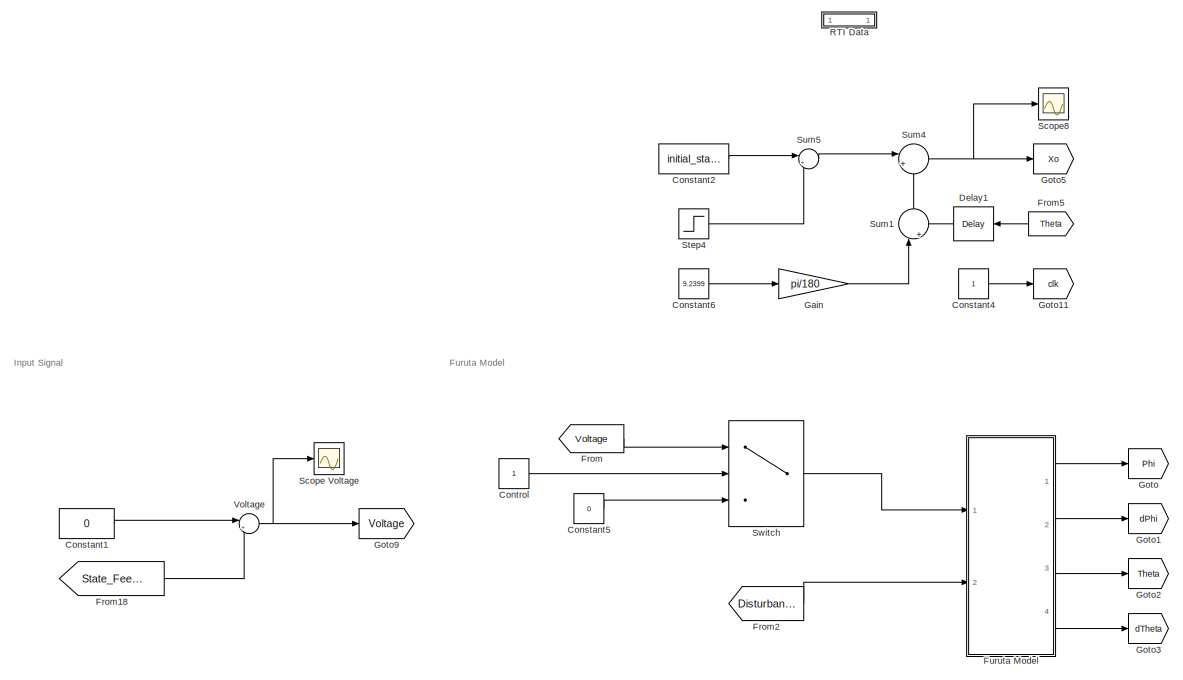
[diagram: root canvas - part 1/3, top left region]
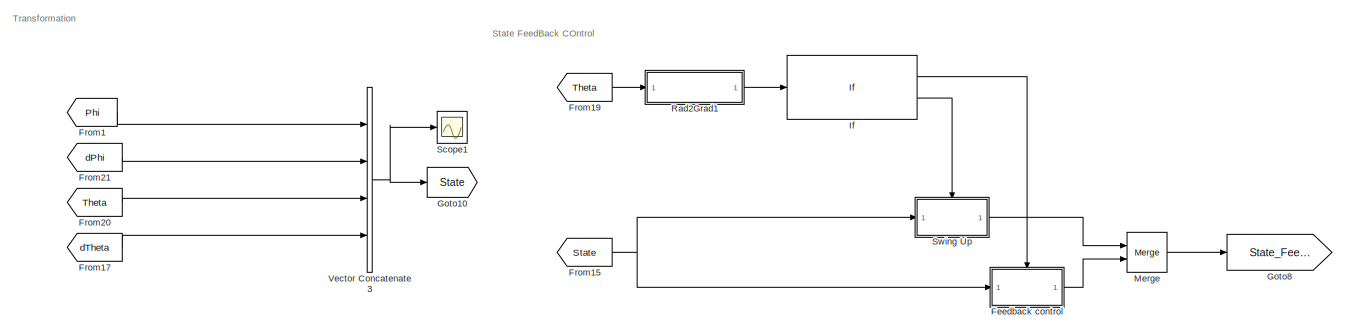
[diagram: root canvas - part 2/3, middle right region]
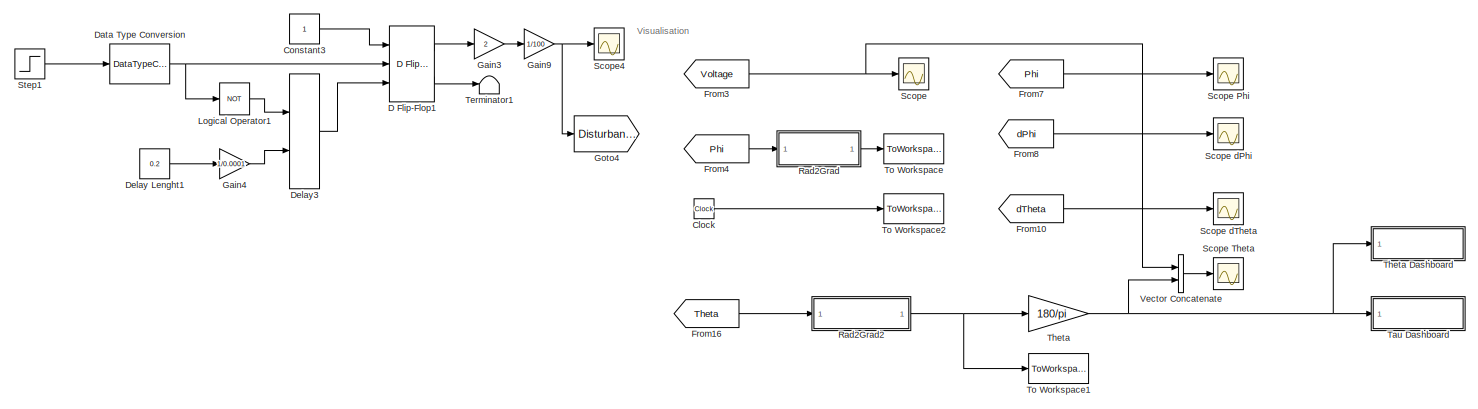
[diagram: root canvas - part 3/3, bottom center region]
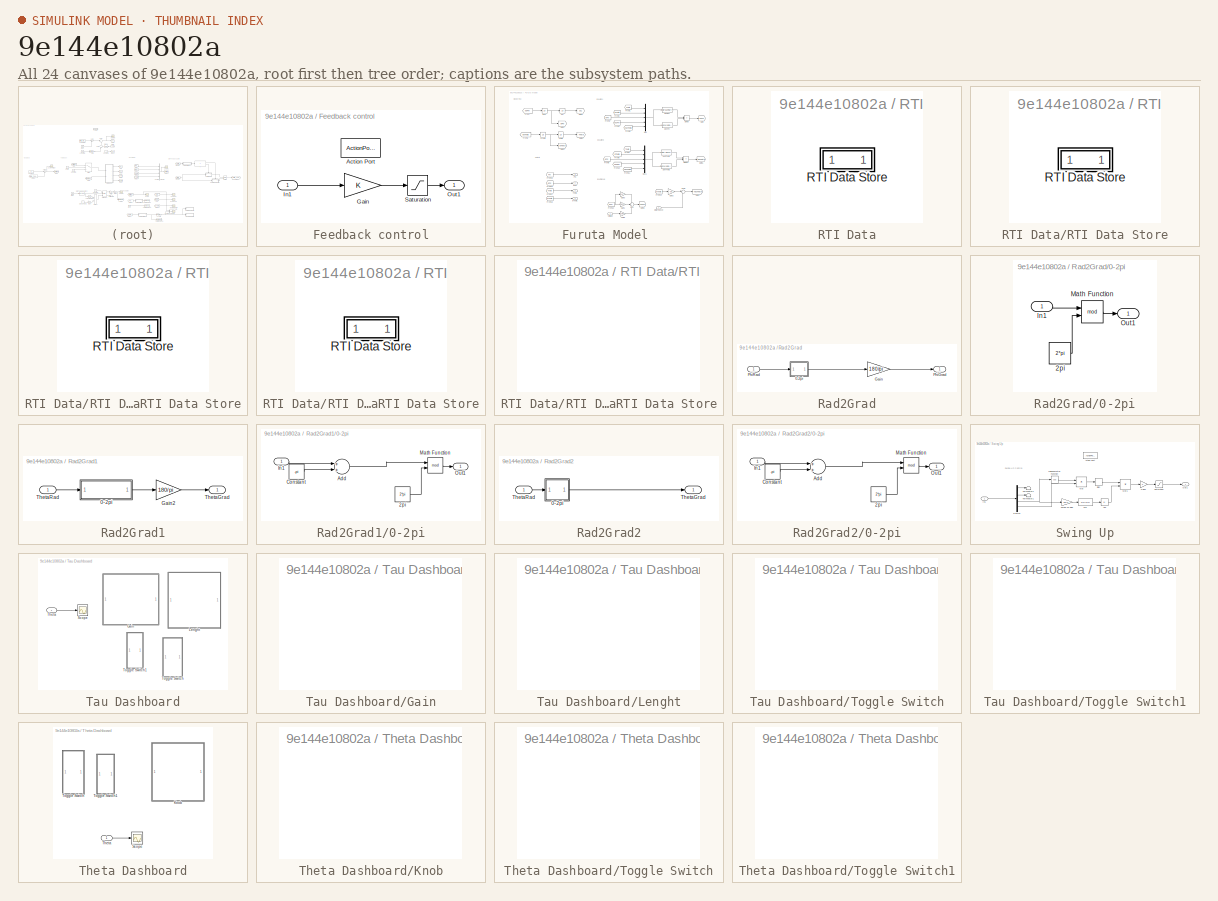
[diagram: thumbnail index - all 24 canvases of the model, root first then tree order]
MODEL slx_9e144e10802a
KIND model
CONFIG AbsTol = auto
CONFIG FixedStep = 0.0001
CONFIG MaxStep = auto
CONFIG MinStep = auto
CONFIG PostLoadFcn = , if any(exist('dsrtsu_mdlpostloadfcn', 'file') == [2, 3, 6]), try dsrtsu_mdlpostloadfcn('Execute', bdroot); catch fprintf('Error in PostLoadFcn (dsrtsu_mdlpostloadfcn) for model "%s":\n %s\n', bdroot, lasterr); end, end, \n
CONFIG RelTol = 1e-3
CONFIG SampleTimeConstraint = Unconstrained
CONFIG Solver = ode3
CONFIG SolverMode = SingleTasking
CONFIG SolverName = ode3
CONFIG StartTime = 0.0
CONFIG StopTime = 10
BLOCK [Clock] Clock
BLOCK [Constant] Constant1
  Value = 0
BLOCK [Constant] Constant2
  Commented = on
  Value = initial_state
BLOCK [Constant] Constant3
  OutDataTypeStr = boolean
BLOCK [Constant] Constant4
  Commented = on
BLOCK [Constant] Constant5
  Value = 0
BLOCK [Constant] Constant6
  Commented = on
  Value = 9.2399
BLOCK [Constant] Control
BLOCK [Reference] D Flip-Flop1  REF=simulink_extras/Flip Flops/D Flip-Flop
  Ports = [3, 2]
  SourceBlock = simulink_extras/Flip Flops/D Flip-Flop
  SourceType = DFlipFlop
BLOCK [DataTypeConversion] Data Type Conversion
  OutDataTypeStr = boolean
  RndMeth = Floor
  SaturateOnIntegerOverflow = off
BLOCK [Constant] Delay Lenght1
  OutDataTypeStr = double
  Value = 0.2
BLOCK [Delay] Delay1
  Commented = on
  DelayLength = 1
  InputPortMap = u0
  Ports = [1, 1]
BLOCK [Delay] Delay3
  DelayLengthSource = Input port
  DelayLengthUpperLimit = 100000
  InitialCondition = 1
  InputPortMap = u0,p1
  Ports = [2, 1]
BLOCK [SubSystem] Feedback control
  Ports = [1, 1, 0, 0, 0, 0, 0, 1]
  RequestExecContextInheritance = off
  TreatAsAtomicUnit = on
BLOCK [ActionPort] Feedback control/Action Port
  ActionType = then
BLOCK [Gain] Feedback control/Gain
  Gain = K
  Multiplication = Matrix(K*u)
  OutDataTypeStr = double
  ParamDataTypeStr = double
  SaturateOnIntegerOverflow = off
BLOCK [Inport] Feedback control/In1
  IconDisplay = Port number
BLOCK [Outport] Feedback control/Out1
  IconDisplay = Port number
BLOCK [Saturate] Feedback control/Saturation
  InputPortMap = u0
  LowerLimit = -12
  Ports = [1, 1]
  UpperLimit = 12
BLOCK [From] From
  GotoTag = Voltage
BLOCK [From] From1
  GotoTag = Phi
BLOCK [From] From10
  GotoTag = dTheta
BLOCK [From] From15
  GotoTag = State
BLOCK [From] From16
  GotoTag = Theta
BLOCK [From] From17
  GotoTag = dTheta
BLOCK [From] From18
  GotoTag = State_FeedBack
BLOCK [From] From19
  GotoTag = Theta
BLOCK [From] From2
  GotoTag = Disturbance
BLOCK [From] From20
  GotoTag = Theta
BLOCK [From] From21
  GotoTag = dPhi
BLOCK [From] From3
  GotoTag = Voltage
BLOCK [From] From4
  GotoTag = Phi
BLOCK [From] From5
  Commented = on
  GotoTag = Theta
BLOCK [From] From7
  GotoTag = Phi
BLOCK [From] From8
  GotoTag = dPhi
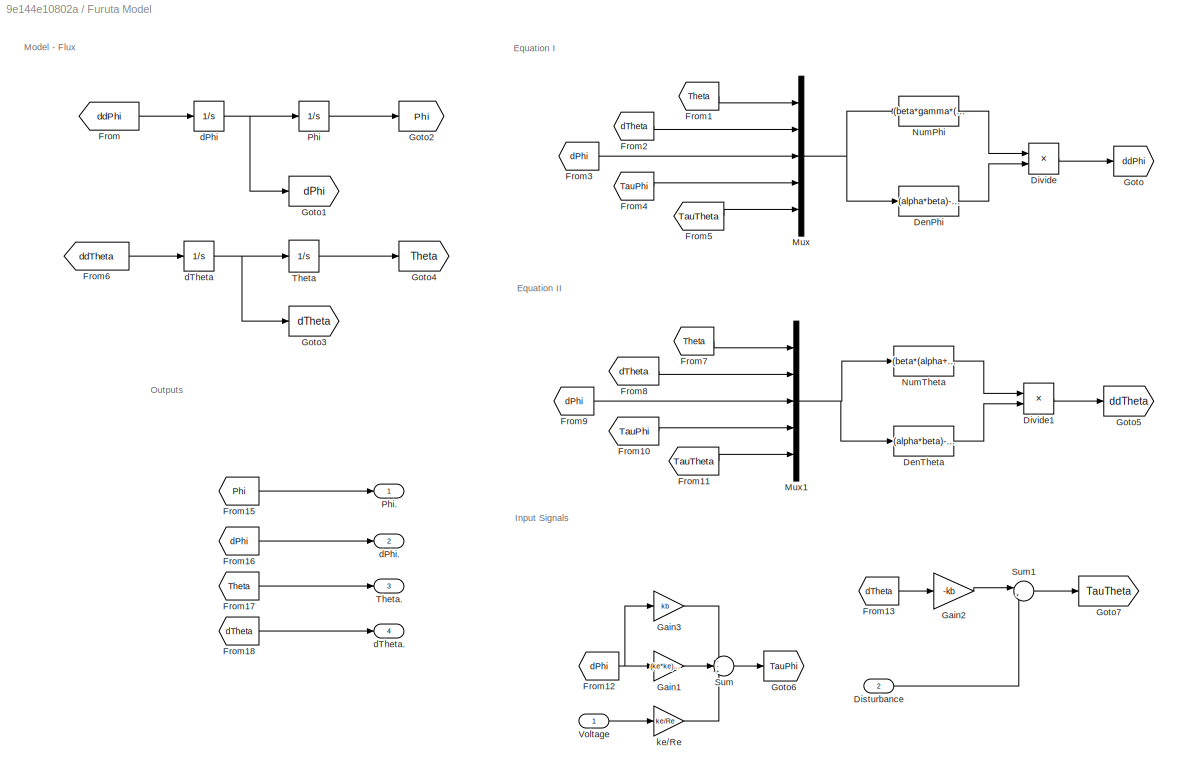
BLOCK [SubSystem] Furuta Model 
  Ports = [2, 4]
  RequestExecContextInheritance = off
BLOCK [Fcn] Furuta Model /DenPhi
  Expr = (alpha*beta)-(gamma*gamma)+((beta*beta+gamma*gamma)*sin(u(1))*sin(u(1)))
BLOCK [Fcn] Furuta Model /DenTheta
  Expr = (alpha*beta)-(gamma*gamma)+((beta*beta+gamma*gamma)*sin(u(1))*sin(u(1)))
BLOCK [Inport] Furuta Model /Disturbance
  IconDisplay = Port number
  Port = 2
BLOCK [Product] Furuta Model /Divide
  InputSameDT = off
  Inputs = */
  OutDataTypeStr = Inherit: Inherit via internal rule
  Ports = [2, 1]
  RndMeth = Floor
  SaturateOnIntegerOverflow = off
BLOCK [Product] Furuta Model /Divide1
  InputSameDT = off
  Inputs = */
  OutDataTypeStr = Inherit: Inherit via internal rule
  Ports = [2, 1]
  RndMeth = Floor
  SaturateOnIntegerOverflow = off
BLOCK [From] Furuta Model /From
  GotoTag = ddPhi
BLOCK [From] Furuta Model /From1
  GotoTag = Theta
BLOCK [From] Furuta Model /From10
  GotoTag = TauPhi
BLOCK [From] Furuta Model /From11
  GotoTag = TauTheta
BLOCK [From] Furuta Model /From12
  GotoTag = dPhi
BLOCK [From] Furuta Model /From13
  GotoTag = dTheta
BLOCK [From] Furuta Model /From15
  GotoTag = Phi
BLOCK [From] Furuta Model /From16
  GotoTag = dPhi
BLOCK [From] Furuta Model /From17
  GotoTag = Theta
BLOCK [From] Furuta Model /From18
  GotoTag = dTheta
BLOCK [From] Furuta Model /From2
  GotoTag = dTheta
BLOCK [From] Furuta Model /From3
  GotoTag = dPhi
BLOCK [From] Furuta Model /From4
  GotoTag = TauPhi
BLOCK [From] Furuta Model /From5
  GotoTag = TauTheta
BLOCK [From] Furuta Model /From6
  GotoTag = ddTheta
BLOCK [From] Furuta Model /From7
  GotoTag = Theta
BLOCK [From] Furuta Model /From8
  GotoTag = dTheta
BLOCK [From] Furuta Model /From9
  GotoTag = dPhi
BLOCK [Gain] Furuta Model /Gain1
  Gain = (ke*ke)/Re
  OutDataTypeStr = Inherit: Inherit via internal rule
  ParamDataTypeStr = Inherit: Inherit via internal rule
  SaturateOnIntegerOverflow = off
BLOCK [Gain] Furuta Model /Gain2
  Gain = -kb
  OutDataTypeStr = Inherit: Inherit via internal rule
  ParamDataTypeStr = Inherit: Inherit via internal rule
  SaturateOnIntegerOverflow = off
BLOCK [Gain] Furuta Model /Gain3
  Gain = kb
  OutDataTypeStr = Inherit: Inherit via internal rule
  ParamDataTypeStr = Inherit: Inherit via internal rule
  SaturateOnIntegerOverflow = off
BLOCK [Goto] Furuta Model /Goto
  GotoTag = ddPhi
BLOCK [Goto] Furuta Model /Goto1
  GotoTag = dPhi
BLOCK [Goto] Furuta Model /Goto2
  GotoTag = Phi
BLOCK [Goto] Furuta Model /Goto3
  GotoTag = dTheta
BLOCK [Goto] Furuta Model /Goto4
  GotoTag = Theta
BLOCK [Goto] Furuta Model /Goto5
  GotoTag = ddTheta
BLOCK [Goto] Furuta Model /Goto6
  GotoTag = TauPhi
BLOCK [Goto] Furuta Model /Goto7
  GotoTag = TauTheta
BLOCK [Mux] Furuta Model /Mux
  DisplayOption = bar
  Inputs = 5
  Ports = [5, 1]
BLOCK [Mux] Furuta Model /Mux1
  DisplayOption = bar
  Inputs = 5
  Ports = [5, 1]
BLOCK [Fcn] Furuta Model /NumPhi
  Expr = (beta*gamma*(sin(u(1))*sin(u(1))-1)*sin(u(1))*u(3)*u(3))-(2*beta*beta*cos(u(1))*sin(u(1))*u(3)*u(2))+(beta*gamma*sin(u(1))*u(2)*u(2))-(gamma*sigma*cos(u(1))*sin(u(1)))+(beta*u(4))-(gamma*cos(u(1))*u(5))
BLOCK [Fcn] Furuta Model /NumTheta
  Expr = (beta*(alpha+beta*sin(u(1))*sin(u(1)))*cos(u(1))*sin(u(1))*u(3)*u(3))+(2*beta*gamma*(1-sin(u(1))*sin(u(1)))*sin(u(1))*u(3)*u(2))-(gamma*gamma*cos(u(1))*sin(u(1))*u(2)*u(2))+(sigma*(alpha+beta*sin(u(1))*sin(u(1)))*sin(u(1)))-(gamma*cos(u(1))*u(4))+((alpha+beta*sin(u(1))*sin(u(1)))*u(5))
BLOCK [Integrator] Furuta Model /Phi
  Ports = [1, 1]
BLOCK [Outport] Furuta Model /Phi.
  IconDisplay = Port number
BLOCK [Sum] Furuta Model /Sum
  IconShape = round
  InputSameDT = off
  Inputs = --+
  OutDataTypeStr = Inherit: Inherit via internal rule
  Ports = [3, 1]
  SaturateOnIntegerOverflow = off
BLOCK [Sum] Furuta Model /Sum1
  IconShape = round
  InputSameDT = off
  Inputs = |++
  OutDataTypeStr = Inherit: Inherit via internal rule
  Ports = [2, 1]
  SaturateOnIntegerOverflow = off
BLOCK [Integrator] Furuta Model /Theta
  InitialCondition = initial_state
  Ports = [1, 1]
BLOCK [Outport] Furuta Model /Theta.
  IconDisplay = Port number
  Port = 3
BLOCK [Inport] Furuta Model /Voltage 
  IconDisplay = Port number
BLOCK [Integrator] Furuta Model /dPhi
  Ports = [1, 1]
BLOCK [Outport] Furuta Model /dPhi.
  IconDisplay = Port number
  Port = 2
BLOCK [Integrator] Furuta Model /dTheta
  Ports = [1, 1]
BLOCK [Outport] Furuta Model /dTheta.
  IconDisplay = Port number
  Port = 4
BLOCK [Gain] Furuta Model /ke//Re 
  Gain = ke/Re
  OutDataTypeStr = Inherit: Inherit via internal rule
  ParamDataTypeStr = Inherit: Inherit via internal rule
  SaturateOnIntegerOverflow = off
BLOCK [Gain] Gain
  Commented = on
  Gain = pi/180
  OutDataTypeStr = Inherit: Inherit via internal rule
  ParamDataTypeStr = Inherit: Inherit via internal rule
  SaturateOnIntegerOverflow = off
BLOCK [Gain] Gain3
  Gain = 2
  OutDataTypeStr = Inherit: Inherit via internal rule
  ParamDataTypeStr = double
  SaturateOnIntegerOverflow = off
BLOCK [Gain] Gain4
  Gain = 1/0.0001
  OutDataTypeStr = Inherit: Inherit via internal rule
  ParamDataTypeStr = Inherit: Inherit via internal rule
  SaturateOnIntegerOverflow = off
BLOCK [Gain] Gain9
  Gain = 1/100
  OutDataTypeStr = Inherit: Inherit via internal rule
  ParamDataTypeStr = Inherit: Inherit via internal rule
  SaturateOnIntegerOverflow = off
BLOCK [Goto] Goto
  GotoTag = Phi
BLOCK [Goto] Goto1
  GotoTag = dPhi
BLOCK [Goto] Goto10
  GotoTag = State
BLOCK [Goto] Goto11
  Commented = on
  GotoTag = clk
BLOCK [Goto] Goto2
  GotoTag = Theta
BLOCK [Goto] Goto3
  GotoTag = dTheta
BLOCK [Goto] Goto4
  GotoTag = Disturbance
BLOCK [Goto] Goto5
  Commented = on
  GotoTag = Xo
BLOCK [Goto] Goto8
  GotoTag = State_FeedBack
BLOCK [Goto] Goto9
  GotoTag = Voltage
BLOCK [If] If
  IfExpression = (u1 < 210) & (u1 > 150)
  Ports = [1, 2]
BLOCK [Logic] Logical Operator1
  AllPortsSameDT = off
  Operator = NOT
  OutDataTypeStr = boolean
  Ports = [1, 1]
BLOCK [Merge] Merge
  Ports = [2, 1]
BLOCK [SubSystem] RTI Data
  CopyFcn = if exist('rtidc'), try,  rtidc('DataHostBlockClbCopy', gcbh); catch, disp(['Warning: ''CopyFcn'' for RTI Data block failed: ' lasterr]); end, end,
  DeleteFcn = if exist('rtidc'), try,  rtidc('DataHostBlockClbDelete', gcbh); catch, disp(['Warning: ''DeleteFcn'' for RTI Data block failed: ' lasterr]); end, end,
  LoadFcn = if exist('rtidc'), try,  rtidc('DataHostBlockClbLoad', gcbh); catch, disp(['Warning: ''LoadFcn'' for RTI Data block failed: ' lasterr]); end, end,
  ModelCloseFcn = if exist('rtidc'), try,  rtidc('DataHostBlockClbModelClose', gcbh); catch, disp(['Warning: ''ModelCloseFcn'' for RTI Data block failed: ' lasterr]); end, end,
  NameChangeFcn = if exist('rtidc'), try,  rtidc('DataHostBlockClbNameChange', gcbh); catch, disp(['Warning: ''NameChangeFcn'' for RTI Data block failed: ' lasterr]); end, end,
  Ports = []
  PostSaveFcn = if exist('rtidc'), try,  rtidc('DataHostBlockClbPostSave', gcbh); catch, disp(['Warning: ''PostSaveFcn'' for RTI Data block failed: ' lasterr]); end, end,
  PreSaveFcn = if exist('rtidc'), try,  rtidc('DataHostBlockClbPreSave', gcbh); catch, disp(['Warning: ''PreSaveFcn'' for RTI Data block failed: ' lasterr]); end, end,
  RequestExecContextInheritance = off
  Tag = struct('RTIDataServer',struct('RTIDataServerVs','2','RTIModelDescription','struct(''main'',''Furuta_Control_2015a'',''sub'','''',''isMp'',0)'))
BLOCK [SubSystem] RTI Data/RTI Data Store
  Ports = []
  RequestExecContextInheritance = off
  Tag = struct('private',struct('version',struct('dsVer',uint32(2),'dsVerCreation',uint32(2),'RTI',struct('ver','7.3','type','RTI1006')),'access',struct('type','Model','isPerm',1,'created',['02-Oct-2018 16:40:55'],'modified',['06-Nov-2018 22:49:19'],'location','')),'public',struct('main',struct('data',[]),'sub',struct('name',{{'Furuta_Control_2015a'}},'data',{{struct('TH',struct('thTaskInfo',struct('taskT...<+901ch>
BLOCK [SubSystem] RTI Data/RTI Data Store/RTI Data Store
  Ports = []
  RequestExecContextInheritance = off
BLOCK [SubSystem] RTI Data/RTI Data Store/RTI Data Store/RTI Data Store
  Ports = []
  RequestExecContextInheritance = off
BLOCK [SubSystem] RTI Data/RTI Data Store/RTI Data Store/RTI Data Store/RTI Data Store
  Ports = []
  RequestExecContextInheritance = off
BLOCK [SubSystem] Rad2Grad
  Ports = [1, 1]
  RequestExecContextInheritance = off
BLOCK [SubSystem] Rad2Grad/0-2pi
  Ports = [1, 1]
  RequestExecContextInheritance = off
BLOCK [Constant] Rad2Grad/0-2pi/2pi
  Value = 2*pi
BLOCK [Inport] Rad2Grad/0-2pi/In1
  IconDisplay = Port number
BLOCK [Math] Rad2Grad/0-2pi/Math Function
  Operator = mod
  Ports = [2, 1]
BLOCK [Outport] Rad2Grad/0-2pi/Out1
  IconDisplay = Port number
BLOCK [Gain] Rad2Grad/Gain
  Commented = through
  Gain = 180/pi
  OutDataTypeStr = Inherit: Inherit via internal rule
  ParamDataTypeStr = Inherit: Inherit via internal rule
  SaturateOnIntegerOverflow = off
BLOCK [Outport] Rad2Grad/PhiGrad
  IconDisplay = Port number
BLOCK [Inport] Rad2Grad/PhiRad
  IconDisplay = Port number
BLOCK [SubSystem] Rad2Grad1
  Ports = [1, 1]
  RequestExecContextInheritance = off
BLOCK [SubSystem] Rad2Grad1/0-2pi
  Ports = [1, 1]
  RequestExecContextInheritance = off
BLOCK [Constant] Rad2Grad1/0-2pi/2pi
  Value = 2*pi
BLOCK [Sum] Rad2Grad1/0-2pi/Add
  InputSameDT = off
  OutDataTypeStr = Inherit: Inherit via internal rule
  Ports = [2, 1]
  SaturateOnIntegerOverflow = off
BLOCK [Constant] Rad2Grad1/0-2pi/Constant
  Value = -pi
BLOCK [Inport] Rad2Grad1/0-2pi/In1
  IconDisplay = Port number
BLOCK [Math] Rad2Grad1/0-2pi/Math Function
  Operator = mod
  Ports = [2, 1]
BLOCK [Outport] Rad2Grad1/0-2pi/Out1
  IconDisplay = Port number
BLOCK [Gain] Rad2Grad1/Gain2
  Gain = 180/pi
  OutDataTypeStr = Inherit: Inherit via internal rule
  ParamDataTypeStr = Inherit: Inherit via internal rule
  SaturateOnIntegerOverflow = off
BLOCK [Outport] Rad2Grad1/ThetaGrad
  IconDisplay = Port number
BLOCK [Inport] Rad2Grad1/ThetaRad
  IconDisplay = Port number
BLOCK [SubSystem] Rad2Grad2
  Ports = [1, 1]
  RequestExecContextInheritance = off
BLOCK [SubSystem] Rad2Grad2/0-2pi
  Ports = [1, 1]
  RequestExecContextInheritance = off
BLOCK [Constant] Rad2Grad2/0-2pi/2pi
  Value = 2*pi
BLOCK [Sum] Rad2Grad2/0-2pi/Add
  InputSameDT = off
  OutDataTypeStr = Inherit: Inherit via internal rule
  Ports = [2, 1]
  SaturateOnIntegerOverflow = off
BLOCK [Constant] Rad2Grad2/0-2pi/Constant
  Value = -pi
BLOCK [Inport] Rad2Grad2/0-2pi/In1
  IconDisplay = Port number
BLOCK [Math] Rad2Grad2/0-2pi/Math Function
  Operator = mod
  Ports = [2, 1]
BLOCK [Outport] Rad2Grad2/0-2pi/Out1
  IconDisplay = Port number
BLOCK [Outport] Rad2Grad2/ThetaGrad
  IconDisplay = Port number
BLOCK [Inport] Rad2Grad2/ThetaRad
  IconDisplay = Port number
BLOCK [Scope] Scope
  DataFormat = StructureWithTime
  Floating = off
  LimitDataPoints = off
  NumInputPorts = 1
  Ports = [1]
  YMax = 6.87804
  YMin = -6.87803
BLOCK [Scope] Scope Phi
  DataFormat = StructureWithTime
  Floating = off
  LimitDataPoints = off
  NumInputPorts = 1
  Ports = [1]
  SaveName = ScopeData4
  YMax = 1.39934
  YMin = -2.67842
  ZoomMode = xonly
BLOCK [Scope] Scope Theta
  DataFormat = StructureWithTime
  Floating = off
  LimitDataPoints = off
  NumInputPorts = 1
  Ports = [1]
  SaveName = ScopeData6
  TimeRange = 10
  YMax = 375
  YMin = -25
BLOCK [Scope] Scope Voltage
  DataFormat = StructureWithTime
  Floating = off
  LimitDataPoints = off
  NumInputPorts = 1
  Ports = [1]
  SaveName = ScopeData1
  YMax = 12.5
  YMin = -12.5
BLOCK [Scope] Scope dPhi
  DataFormat = StructureWithTime
  Floating = off
  LimitDataPoints = off
  NumInputPorts = 1
  Ports = [1]
  SaveName = ScopeData5
  YMax = 9.91965
  YMin = -12.39064
BLOCK [Scope] Scope dTheta
  DataFormat = StructureWithTime
  Floating = off
  LimitDataPoints = off
  NumInputPorts = 1
  Ports = [1]
  SaveName = ScopeData7
  YMax = 17.40154
  YMin = -20.04064
BLOCK [Scope] Scope1
  Floating = off
  LimitDataPoints = off
  NumInputPorts = 1
  Ports = [1]
  SaveName = ScopeData9
  YMax = 15
  YMin = -17.5
BLOCK [Scope] Scope4
  DataFormat = StructureWithTime
  Floating = off
  LimitDataPoints = off
  NumInputPorts = 1
  Ports = [1]
  SaveName = ScopeData10
  YMax = 0.0325
  YMin = 0
BLOCK [Scope] Scope8
  Commented = on
  Floating = off
  NumInputPorts = 1
  Ports = [1]
  SaveName = ScopeData8
BLOCK [Step] Step1
  SampleTime = 0
  Time = 7
BLOCK [Step] Step4
  After = initial_state
  Commented = on
  SampleTime = 0
  Time = 0.5
BLOCK [Sum] Sum1
  Commented = on
  IconShape = round
  InputSameDT = off
  Inputs = |++
  OutDataTypeStr = Inherit: Inherit via internal rule
  Ports = [2, 1]
  SaturateOnIntegerOverflow = off
BLOCK [Sum] Sum4
  Commented = on
  IconShape = round
  InputSameDT = off
  Inputs = |++
  OutDataTypeStr = Inherit: Inherit via internal rule
  Ports = [2, 1]
  SaturateOnIntegerOverflow = off
BLOCK [Sum] Sum5
  Commented = on
  IconShape = round
  InputSameDT = off
  Inputs = |+-
  OutDataTypeStr = Inherit: Inherit via internal rule
  Ports = [2, 1]
  SaturateOnIntegerOverflow = off
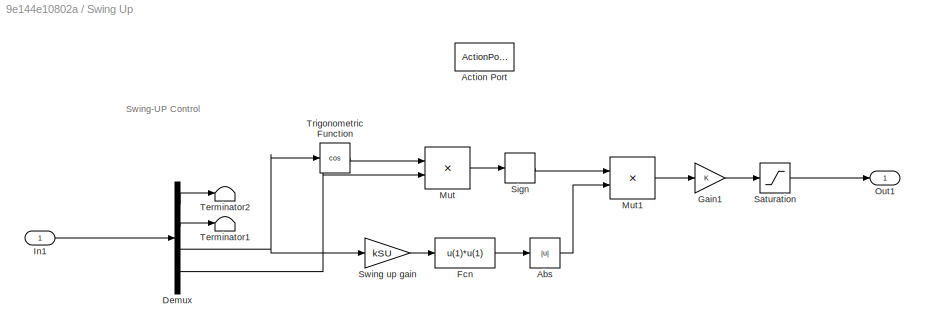
BLOCK [SubSystem] Swing Up
  Ports = [1, 1, 0, 0, 0, 0, 0, 1]
  RequestExecContextInheritance = off
  TreatAsAtomicUnit = on
BLOCK [Abs] Swing Up/Abs
  SaturateOnIntegerOverflow = off
BLOCK [ActionPort] Swing Up/Action Port
  ActionType = else
BLOCK [Demux] Swing Up/Demux
  DisplayOption = bar
  Ports = [1, 4]
BLOCK [Fcn] Swing Up/Fcn
  Expr = u(1)*u(1)
BLOCK [Gain] Swing Up/Gain1
  OutDataTypeStr = Inherit: Inherit via internal rule
  ParamDataTypeStr = Inherit: Inherit via internal rule
  SaturateOnIntegerOverflow = off
BLOCK [Inport] Swing Up/In1
  IconDisplay = Port number
BLOCK [Product] Swing Up/Mut
  InputSameDT = off
  Inputs = **
  OutDataTypeStr = Inherit: Inherit via internal rule
  Ports = [2, 1]
  RndMeth = Floor
  SaturateOnIntegerOverflow = off
BLOCK [Product] Swing Up/Mut1
  InputSameDT = off
  Inputs = **
  OutDataTypeStr = Inherit: Inherit via internal rule
  Ports = [2, 1]
  RndMeth = Floor
  SaturateOnIntegerOverflow = off
BLOCK [Outport] Swing Up/Out1
  IconDisplay = Port number
  InitialOutput = 0
BLOCK [Saturate] Swing Up/Saturation
  InputPortMap = u0
  LowerLimit = -12
  Ports = [1, 1]
  UpperLimit = 12
BLOCK [Signum] Swing Up/Sign
BLOCK [Gain] Swing Up/Swing up gain
  Gain = kSU
  OutDataTypeStr = Inherit: Inherit via internal rule
  ParamDataTypeStr = Inherit: Inherit via internal rule
  SaturateOnIntegerOverflow = off
BLOCK [Terminator] Swing Up/Terminator1
BLOCK [Terminator] Swing Up/Terminator2
BLOCK [Trigonometry] Swing Up/Trigonometric Function
  Operator = cos
  Ports = [1, 1]
BLOCK [Switch] Switch
  Criteria = u2 > Threshold
  InputSameDT = off
  SaturateOnIntegerOverflow = off
  Threshold = 0.5
BLOCK [SubSystem] Tau Dashboard
  Ports = [1]
  RequestExecContextInheritance = off
BLOCK [SubSystem] Tau Dashboard/Gain
  DialogController = hmiCreateDDGDialog
  IsWebBlock = on
  MaskHideContents = on
  Ports = []
  RequestExecContextInheritance = off
BLOCK [SubSystem] Tau Dashboard/Lenght
  DialogController = hmiCreateDDGDialog
  IsWebBlock = on
  MaskHideContents = on
  Ports = []
  RequestExecContextInheritance = off
BLOCK [Scope] Tau Dashboard/Scope
  DataFormat = StructureWithTime
  Floating = off
  LimitDataPoints = off
  NumInputPorts = 1
  Ports = [1]
  SaveName = ScopeData2
  TimeRange = 10
  YMax = 375
  YMin = 0
BLOCK [Inport] Tau Dashboard/Theta 
  IconDisplay = Port number
BLOCK [SubSystem] Tau Dashboard/Toggle Switch
  DialogController = hmiCreateDDGDialog
  IsWebBlock = on
  MaskHideContents = on
  Ports = []
  RequestExecContextInheritance = off
BLOCK [SubSystem] Tau Dashboard/Toggle Switch1
  DialogController = hmiCreateDDGDialog
  IsWebBlock = on
  MaskHideContents = on
  Ports = []
  RequestExecContextInheritance = off
BLOCK [Terminator] Terminator1
BLOCK [Gain] Theta
  Gain = 180/pi
  OutDataTypeStr = Inherit: Inherit via internal rule
  ParamDataTypeStr = Inherit: Inherit via internal rule
  SaturateOnIntegerOverflow = off
BLOCK [SubSystem] Theta Dashboard
  Ports = [1]
  RequestExecContextInheritance = off
BLOCK [SubSystem] Theta Dashboard/Knob
  DialogController = hmiCreateDDGDialog
  IsWebBlock = on
  MaskHideContents = on
  Ports = []
  RequestExecContextInheritance = off
BLOCK [Scope] Theta Dashboard/Scope
  DataFormat = StructureWithTime
  Floating = off
  LimitDataPoints = off
  NumInputPorts = 1
  Ports = [1]
  SaveName = ScopeData1
  YMax = 404.9865
  YMin = -44.99482
BLOCK [Inport] Theta Dashboard/Theta
  IconDisplay = Port number
BLOCK [SubSystem] Theta Dashboard/Toggle Switch
  DialogController = hmiCreateDDGDialog
  IsWebBlock = on
  MaskHideContents = on
  Ports = []
  RequestExecContextInheritance = off
BLOCK [SubSystem] Theta Dashboard/Toggle Switch1
  DialogController = hmiCreateDDGDialog
  IsWebBlock = on
  MaskHideContents = on
  Ports = []
  RequestExecContextInheritance = off
BLOCK [ToWorkspace] To Workspace
  FixptAsFi = on
  MaxDataPoints = inf
  Ports = [1]
  SampleTime = -1
  Save2DSignal = 2-D array (concatenate along first dimension)
  VariableName = simPhi
BLOCK [ToWorkspace] To Workspace1
  FixptAsFi = on
  MaxDataPoints = inf
  Ports = [1]
  SampleTime = -1
  Save2DSignal = 2-D array (concatenate along first dimension)
  VariableName = simTheta
BLOCK [ToWorkspace] To Workspace2
  FixptAsFi = on
  MaxDataPoints = inf
  Ports = [1]
  SampleTime = -1
  Save2DSignal = 2-D array (concatenate along first dimension)
  VariableName = simt
BLOCK [Concatenate] Vector Concatenate
  Ports = [2, 1]
BLOCK [Concatenate] Vector Concatenate3
  NumInputs = 4
  Ports = [4, 1]
BLOCK [Sum] Voltage
  IconShape = round
  InputSameDT = off
  Inputs = |+-
  OutDataTypeStr = Inherit: Inherit via internal rule
  Ports = [2, 1]
  SaturateOnIntegerOverflow = off
ANNOTATION (root): Furuta Model
ANNOTATION (root): Input Signal
ANNOTATION (root): State FeedBack COntrol
ANNOTATION (root): Transformation
ANNOTATION (root): Visualisation
ANNOTATION Furuta Model : Equation I
ANNOTATION Furuta Model : Equation II
ANNOTATION Furuta Model : Input Signals
ANNOTATION Furuta Model : Model - Flux
ANNOTATION Furuta Model : Outputs
ANNOTATION Swing Up: Swing-UP Control
LINE Clock:1 -> To Workspace2:1
LINE Constant1:1 -> Voltage:1
LINE Constant2:1 -> Sum5:1
LINE Constant3:1 -> D Flip-Flop1:1
LINE Constant4:1 -> Goto11:1
LINE Constant5:1 -> Switch:3
LINE Constant6:1 -> Gain:1
LINE Control:1 -> Switch:2
LINE D Flip-Flop1:1 -> Gain3:1
LINE D Flip-Flop1:2 -> Terminator1:1
NET Data Type Conversion:1 -> D Flip-Flop1:2, Logical Operator1:1
LINE Delay Lenght1:1 -> Gain4:1
LINE Delay1:1 -> Sum1:2
LINE Delay3:1 -> D Flip-Flop1:3
LINE Feedback control/Gain:1 -> Feedback control/Saturation:1
LINE Feedback control/In1:1 -> Feedback control/Gain:1
LINE Feedback control/Saturation:1 -> Feedback control/Out1:1
LINE Feedback control:1 -> Merge:2
LINE From10:1 -> Scope dTheta:1
NET From15:1 -> Feedback control:1, Swing Up:1
LINE From16:1 -> Rad2Grad2:1
LINE From17:1 -> Vector Concatenate3:4
LINE From18:1 -> Voltage:2
LINE From19:1 -> Rad2Grad1:1
LINE From1:1 -> Vector Concatenate3:1
LINE From20:1 -> Vector Concatenate3:3
LINE From21:1 -> Vector Concatenate3:2
LINE From2:1 -> Furuta Model :2
NET From3:1 -> Scope:1, Vector Concatenate:1
LINE From4:1 -> Rad2Grad:1
LINE From5:1 -> Delay1:1
LINE From7:1 -> Scope Phi:1
LINE From8:1 -> Scope dPhi:1
LINE From:1 -> Switch:1
LINE Furuta Model /DenPhi:1 -> Furuta Model /Divide:2
LINE Furuta Model /DenTheta:1 -> Furuta Model /Divide1:2
LINE Furuta Model /Disturbance:1 -> Furuta Model /Sum1:2
LINE Furuta Model /Divide1:1 -> Furuta Model /Goto5:1
LINE Furuta Model /Divide:1 -> Furuta Model /Goto:1
LINE Furuta Model /From10:1 -> Furuta Model /Mux1:4
LINE Furuta Model /From11:1 -> Furuta Model /Mux1:5
NET Furuta Model /From12:1 -> Furuta Model /Gain1:1, Furuta Model /Gain3:1
LINE Furuta Model /From13:1 -> Furuta Model /Gain2:1
LINE Furuta Model /From15:1 -> Furuta Model /Phi.:1
LINE Furuta Model /From16:1 -> Furuta Model /dPhi.:1
LINE Furuta Model /From17:1 -> Furuta Model /Theta.:1
LINE Furuta Model /From18:1 -> Furuta Model /dTheta.:1
LINE Furuta Model /From1:1 -> Furuta Model /Mux:1
LINE Furuta Model /From2:1 -> Furuta Model /Mux:2
LINE Furuta Model /From3:1 -> Furuta Model /Mux:3
LINE Furuta Model /From4:1 -> Furuta Model /Mux:4
LINE Furuta Model /From5:1 -> Furuta Model /Mux:5
LINE Furuta Model /From6:1 -> Furuta Model /dTheta:1
LINE Furuta Model /From7:1 -> Furuta Model /Mux1:1
LINE Furuta Model /From8:1 -> Furuta Model /Mux1:2
LINE Furuta Model /From9:1 -> Furuta Model /Mux1:3
LINE Furuta Model /From:1 -> Furuta Model /dPhi:1
LINE Furuta Model /Gain1:1 -> Furuta Model /Sum:2
LINE Furuta Model /Gain2:1 -> Furuta Model /Sum1:1
LINE Furuta Model /Gain3:1 -> Furuta Model /Sum:1
NET Furuta Model /Mux1:1 -> Furuta Model /DenTheta:1, Furuta Model /NumTheta:1
NET Furuta Model /Mux:1 -> Furuta Model /DenPhi:1, Furuta Model /NumPhi:1
LINE Furuta Model /NumPhi:1 -> Furuta Model /Divide:1
LINE Furuta Model /NumTheta:1 -> Furuta Model /Divide1:1
LINE Furuta Model /Phi:1 -> Furuta Model /Goto2:1
LINE Furuta Model /Sum1:1 -> Furuta Model /Goto7:1
LINE Furuta Model /Sum:1 -> Furuta Model /Goto6:1
LINE Furuta Model /Theta:1 -> Furuta Model /Goto4:1
LINE Furuta Model /Voltage :1 -> Furuta Model /ke//Re :1
NET Furuta Model /dPhi:1 -> Furuta Model /Goto1:1, Furuta Model /Phi:1
NET Furuta Model /dTheta:1 -> Furuta Model /Goto3:1, Furuta Model /Theta:1
LINE Furuta Model /ke//Re :1 -> Furuta Model /Sum:3
LINE Furuta Model :1 -> Goto:1
LINE Furuta Model :2 -> Goto1:1
LINE Furuta Model :3 -> Goto2:1
LINE Furuta Model :4 -> Goto3:1
LINE Gain3:1 -> Gain9:1
LINE Gain4:1 -> Delay3:2
NET Gain9:1 -> Goto4:1, Scope4:1
LINE Gain:1 -> Sum1:1
LINE If:1 -> Feedback control:ifaction
LINE If:2 -> Swing Up:ifaction
LINE Logical Operator1:1 -> Delay3:1
LINE Merge:1 -> Goto8:1
LINE Rad2Grad/0-2pi/2pi:1 -> Rad2Grad/0-2pi/Math Function:2
LINE Rad2Grad/0-2pi/In1:1 -> Rad2Grad/0-2pi/Math Function:1
LINE Rad2Grad/0-2pi/Math Function:1 -> Rad2Grad/0-2pi/Out1:1
LINE Rad2Grad/0-2pi:1 -> Rad2Grad/Gain:1
LINE Rad2Grad/Gain:1 -> Rad2Grad/PhiGrad:1
LINE Rad2Grad/PhiRad:1 -> Rad2Grad/0-2pi:1
LINE Rad2Grad1/0-2pi/2pi:1 -> Rad2Grad1/0-2pi/Math Function:2
LINE Rad2Grad1/0-2pi/Add:1 -> Rad2Grad1/0-2pi/Math Function:1
LINE Rad2Grad1/0-2pi/Constant:1 -> Rad2Grad1/0-2pi/Add:2
LINE Rad2Grad1/0-2pi/In1:1 -> Rad2Grad1/0-2pi/Add:1
LINE Rad2Grad1/0-2pi/Math Function:1 -> Rad2Grad1/0-2pi/Out1:1
LINE Rad2Grad1/0-2pi:1 -> Rad2Grad1/Gain2:1
LINE Rad2Grad1/Gain2:1 -> Rad2Grad1/ThetaGrad:1
LINE Rad2Grad1/ThetaRad:1 -> Rad2Grad1/0-2pi:1
LINE Rad2Grad1:1 -> If:1
LINE Rad2Grad2/0-2pi/2pi:1 -> Rad2Grad2/0-2pi/Math Function:2
LINE Rad2Grad2/0-2pi/Add:1 -> Rad2Grad2/0-2pi/Math Function:1
LINE Rad2Grad2/0-2pi/Constant:1 -> Rad2Grad2/0-2pi/Add:2
LINE Rad2Grad2/0-2pi/In1:1 -> Rad2Grad2/0-2pi/Add:1
LINE Rad2Grad2/0-2pi/Math Function:1 -> Rad2Grad2/0-2pi/Out1:1
LINE Rad2Grad2/0-2pi:1 -> Rad2Grad2/ThetaGrad:1
LINE Rad2Grad2/ThetaRad:1 -> Rad2Grad2/0-2pi:1
NET Rad2Grad2:1 -> Theta:1, To Workspace1:1
LINE Rad2Grad:1 -> To Workspace:1
LINE Step1:1 -> Data Type Conversion:1
LINE Step4:1 -> Sum5:2
LINE Sum1:1 -> Sum4:2
NET Sum4:1 -> Goto5:1, Scope8:1
LINE Sum5:1 -> Sum4:1
LINE Swing Up/Abs:1 -> Swing Up/Mut1:2
LINE Swing Up/Demux:1 -> Swing Up/Terminator2:1
LINE Swing Up/Demux:2 -> Swing Up/Terminator1:1
NET Swing Up/Demux:3 -> Swing Up/Swing up gain:1, Swing Up/Trigonometric Function:1
LINE Swing Up/Demux:4 -> Swing Up/Mut:2
LINE Swing Up/Fcn:1 -> Swing Up/Abs:1
LINE Swing Up/Gain1:1 -> Swing Up/Saturation:1
LINE Swing Up/In1:1 -> Swing Up/Demux:1
LINE Swing Up/Mut1:1 -> Swing Up/Gain1:1
LINE Swing Up/Mut:1 -> Swing Up/Sign:1
LINE Swing Up/Saturation:1 -> Swing Up/Out1:1
LINE Swing Up/Sign:1 -> Swing Up/Mut1:1
LINE Swing Up/Swing up gain:1 -> Swing Up/Fcn:1
LINE Swing Up/Trigonometric Function:1 -> Swing Up/Mut:1
LINE Swing Up:1 -> Merge:1
LINE Switch:1 -> Furuta Model :1
LINE Tau Dashboard/Theta :1 -> Tau Dashboard/Scope:1
LINE Theta Dashboard/Theta:1 -> Theta Dashboard/Scope:1
NET Theta:1 -> Tau Dashboard:1, Theta Dashboard:1, Vector Concatenate:2
NET Vector Concatenate3:1 -> Goto10:1, Scope1:1
LINE Vector Concatenate:1 -> Scope Theta:1
NET Voltage:1 -> Goto9:1, Scope Voltage:1
note: NET lines group one-source signal fan-out (src -> all destinations, sorted); 1:1 wires keep LINE
